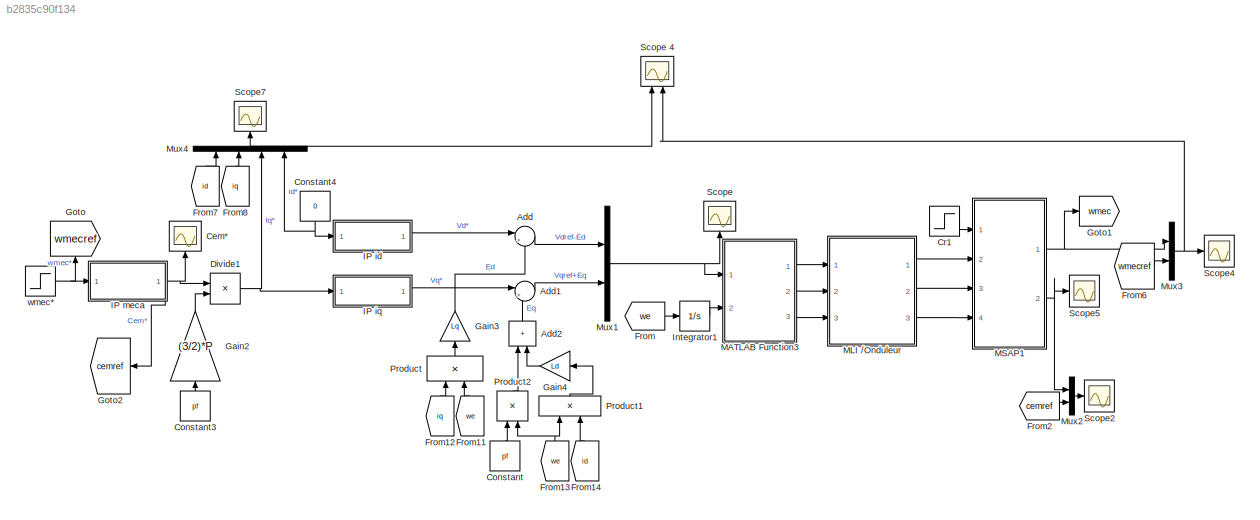
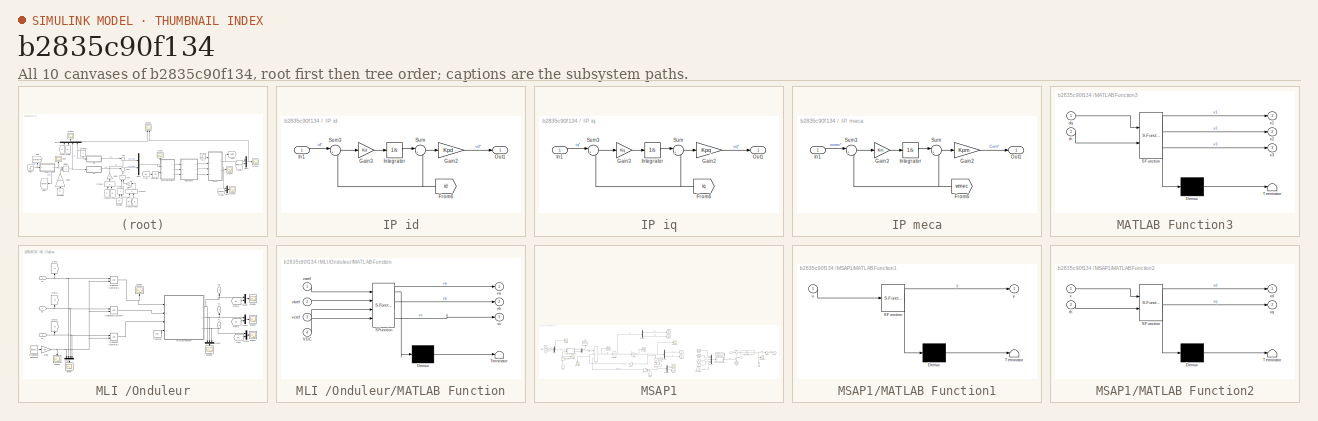
[diagram: thumbnail index - all 10 canvases of the model, root first then tree order]
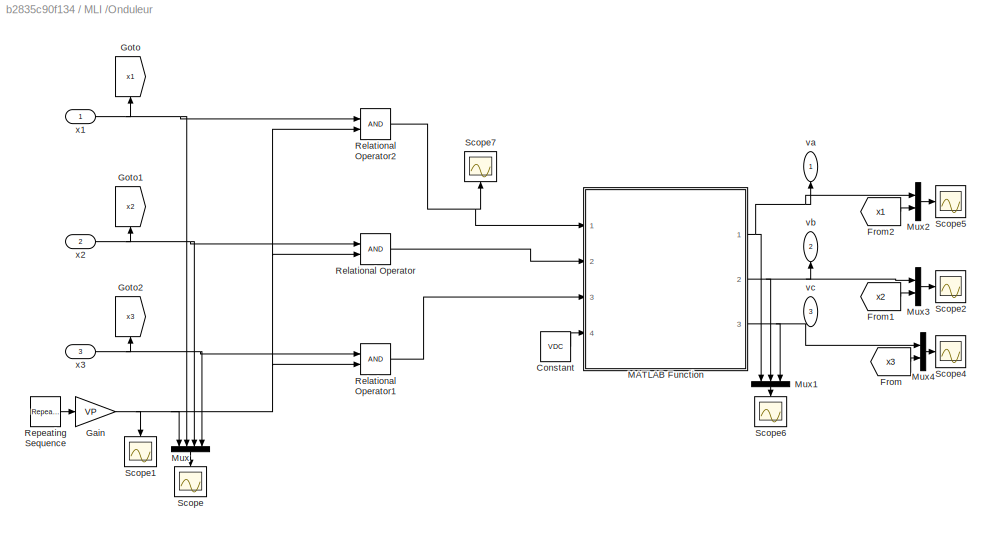
MODEL slx_b2835c90f134
KIND model
CONFIG AbsTol = 1e-5
CONFIG EnableMultiTasking = off
CONFIG FixedStep = 1e-5
CONFIG MaxStep = auto
CONFIG MinStep = auto
CONFIG RelTol = 1e-5
CONFIG SampleTimeConstraint = Unconstrained
CONFIG SolverName = ode1
CONFIG StartTime = 0.0
CONFIG StopTime = 10
BLOCK [Sum] Add
  Inputs = |+-
  Ports = [2, 1]
BLOCK [Sum] Add1
  Inputs = |++
  Ports = [2, 1]
BLOCK [Sum] Add2
  IconShape = rectangular
  NameLocation = right
  Ports = [2, 1]
BLOCK [Scope] Cem*
  Floating = off
  NameLocation = right
  NumInputPorts = 1
  Ports = [1]
  ScopeSpecificationString = Simulink.scopes.TimeScopeBlockCfg('CurrentConfiguration', extmgr.ConfigurationSet(extmgr.Configuration('Core','General UI',true),extmgr.Configuration('Core','Source UI',true),extmgr.Configuration('Sources','WiredSimulink',true,'DataLoggingVariableName','ScopeData3'),extmgr.Configuration('Visuals','Time Domain',true,'SerializedDisplays',{struct('MinYLimReal','-2390.72944','MaxYLimReal','17374.15214...<+1437ch>
BLOCK [Constant] Constant
  NameLocation = right
  Value = pf
BLOCK [Constant] Constant3
  NameLocation = right
  Value = pf
BLOCK [Constant] Constant4
  NameLocation = left
  Value = 0
BLOCK [Step] Cr1
  After = 1.9+C0
  SampleTime = 0
  Time = 6
BLOCK [Product] Divide1
  Inputs = */
  Ports = [2, 1]
BLOCK [From] From
  GotoTag = we
  TagVisibility = global
BLOCK [From] From11
  GotoTag = we
  NameLocation = right
  TagVisibility = global
BLOCK [From] From12
  GotoTag = iq
  NameLocation = right
  TagVisibility = global
BLOCK [From] From13
  GotoTag = we
  NameLocation = right
  TagVisibility = global
BLOCK [From] From14
  GotoTag = id
  NameLocation = right
  TagVisibility = global
BLOCK [From] From2
  GotoTag = cemref
BLOCK [From] From6
  GotoTag = wmecref
  TagVisibility = global
BLOCK [From] From7
  GotoTag = id
  NameLocation = right
  TagVisibility = global
BLOCK [From] From8
  GotoTag = iq
  NameLocation = right
  TagVisibility = global
BLOCK [Gain] Gain2
  Gain = (3/2)*P
  NameLocation = right
BLOCK [Gain] Gain3
  Gain = Lq
  NameLocation = right
BLOCK [Gain] Gain4
  Gain = Ld
  NameLocation = top
BLOCK [Goto] Goto
  GotoTag = wmecref
  NameLocation = right
  TagVisibility = global
BLOCK [Goto] Goto1
  GotoTag = wmec
  TagVisibility = global
BLOCK [Goto] Goto2
  GotoTag = cemref
  NameLocation = top
BLOCK [SubSystem] IP id
  Ports = [1, 1]
  RequestExecContextInheritance = off
BLOCK [From] IP id/From6
  GotoTag = id
  NameLocation = top
  TagVisibility = global
BLOCK [Gain] IP id/Gain2
  Gain = Kpd
BLOCK [Gain] IP id/Gain3
  Gain = Kid
BLOCK [Inport] IP id/In1
  IconDisplay = Signal name
BLOCK [Integrator] IP id/Integrator
  Ports = [1, 1]
BLOCK [Outport] IP id/Out1
  IconDisplay = Signal name
BLOCK [Sum] IP id/Sum
  Inputs = |+-
  Ports = [2, 1]
BLOCK [Sum] IP id/Sum3
  Inputs = |+-
  Ports = [2, 1]
BLOCK [SubSystem] IP iq
  Ports = [1, 1]
  RequestExecContextInheritance = off
BLOCK [From] IP iq/From6
  GotoTag = iq
  NameLocation = top
  TagVisibility = global
BLOCK [Gain] IP iq/Gain2
  Gain = Kpq
BLOCK [Gain] IP iq/Gain3
  Gain = Kiq
BLOCK [Inport] IP iq/In1
  IconDisplay = Signal name
BLOCK [Integrator] IP iq/Integrator
  Ports = [1, 1]
BLOCK [Outport] IP iq/Out1
  IconDisplay = Signal name
BLOCK [Sum] IP iq/Sum
  Inputs = |+-
  Ports = [2, 1]
BLOCK [Sum] IP iq/Sum3
  Inputs = |+-
  Ports = [2, 1]
BLOCK [SubSystem] IP meca
  Ports = [1, 1]
  RequestExecContextInheritance = off
BLOCK [From] IP meca/From6
  GotoTag = wmec
  NameLocation = top
  TagVisibility = global
BLOCK [Gain] IP meca/Gain2
  Gain = Kpm
BLOCK [Gain] IP meca/Gain3
  Gain = Kim
BLOCK [Inport] IP meca/In1
  IconDisplay = Signal name
BLOCK [Integrator] IP meca/Integrator
  Ports = [1, 1]
BLOCK [Outport] IP meca/Out1
  IconDisplay = Signal name
BLOCK [Sum] IP meca/Sum
  Inputs = |+-
  Ports = [2, 1]
BLOCK [Sum] IP meca/Sum3
  Inputs = |+-
  Ports = [2, 1]
BLOCK [Integrator] Integrator1
  Ports = [1, 1]
BLOCK [SubSystem] MATLAB Function3
  ErrorFcn = Stateflow.Translate.translate
  PermitHierarchicalResolution = ExplicitOnly
  Ports = [2, 3]
  RequestExecContextInheritance = off
  SFBlockType = MATLAB Function
  TreatAsAtomicUnit = on
BLOCK [Demux] MATLAB Function3/ Demux 
  Outputs = 1
  Ports = [1, 1]
BLOCK [S-Function] MATLAB Function3/ SFunction 
  EnableBusSupport = on
  FunctionName = sf_sfun
  PortCounts = [2 4]
  Ports = [2, 4]
  SFcnIsStateOwnerBlock = off
  SFunctionDeploymentMode = off
  Tag = Stateflow S-Function 3
BLOCK [Terminator] MATLAB Function3/ Terminator 
BLOCK [Inport] MATLAB Function3/dq
BLOCK [Inport] MATLAB Function3/th
  Port = 2
BLOCK [Outport] MATLAB Function3/x1
BLOCK [Outport] MATLAB Function3/x2
  Port = 2
BLOCK [Outport] MATLAB Function3/x3
  Port = 3
BLOCK [SubSystem] MLI //Onduleur
  Ports = [3, 3]
  RequestExecContextInheritance = off
BLOCK [Constant] MLI //Onduleur/Constant
  Value = VDC
BLOCK [From] MLI //Onduleur/From
  GotoTag = x3
BLOCK [From] MLI //Onduleur/From1
  GotoTag = x2
BLOCK [From] MLI //Onduleur/From2
  GotoTag = x1
BLOCK [Gain] MLI //Onduleur/Gain
  Gain = VP
BLOCK [Goto] MLI //Onduleur/Goto
  GotoTag = x1
  NameLocation = right
BLOCK [Goto] MLI //Onduleur/Goto1
  GotoTag = x2
  NameLocation = right
BLOCK [Goto] MLI //Onduleur/Goto2
  GotoTag = x3
  NameLocation = right
BLOCK [SubSystem] MLI //Onduleur/MATLAB Function
  ErrorFcn = Stateflow.Translate.translate
  PermitHierarchicalResolution = ExplicitOnly
  Ports = [4, 3]
  RequestExecContextInheritance = off
  SFBlockType = MATLAB Function
  TreatAsAtomicUnit = on
BLOCK [Demux] MLI //Onduleur/MATLAB Function/ Demux 
  Outputs = 1
  Ports = [1, 1]
BLOCK [S-Function] MLI //Onduleur/MATLAB Function/ SFunction 
  EnableBusSupport = on
  FunctionName = sf_sfun
  PortCounts = [4 4]
  Ports = [4, 4]
  SFcnIsStateOwnerBlock = off
  SFunctionDeploymentMode = off
  Tag = Stateflow S-Function 4
BLOCK [Terminator] MLI //Onduleur/MATLAB Function/ Terminator 
BLOCK [Inport] MLI //Onduleur/MATLAB Function/VDC
  Port = 4
BLOCK [Outport] MLI //Onduleur/MATLAB Function/va
BLOCK [Inport] MLI //Onduleur/MATLAB Function/varef
BLOCK [Outport] MLI //Onduleur/MATLAB Function/vb
  Port = 2
BLOCK [Inport] MLI //Onduleur/MATLAB Function/vbref
  Port = 2
BLOCK [Outport] MLI //Onduleur/MATLAB Function/vc
  Port = 3
BLOCK [Inport] MLI //Onduleur/MATLAB Function/vcref
  Port = 3
BLOCK [Mux] MLI //Onduleur/Mux
  DisplayOption = bar
  NameLocation = left
  Ports = [4, 1]
BLOCK [Mux] MLI //Onduleur/Mux1
  DisplayOption = bar
  Inputs = 3
  NameLocation = left
  Ports = [3, 1]
BLOCK [Mux] MLI //Onduleur/Mux2
  DisplayOption = bar
  Inputs = 2
  Ports = [2, 1]
BLOCK [Mux] MLI //Onduleur/Mux3
  DisplayOption = bar
  Inputs = 2
  Ports = [2, 1]
BLOCK [Mux] MLI //Onduleur/Mux4
  DisplayOption = bar
  Inputs = 2
  Ports = [2, 1]
BLOCK [RelationalOperator] MLI //Onduleur/Relational Operator
  InputSameDT = off
  OutDataTypeStr = boolean
  Ports = [2, 1]
  RndMeth = Simplest
BLOCK [RelationalOperator] MLI //Onduleur/Relational Operator1
  InputSameDT = off
  OutDataTypeStr = boolean
  Ports = [2, 1]
  RndMeth = Simplest
BLOCK [RelationalOperator] MLI //Onduleur/Relational Operator2
  InputSameDT = off
  OutDataTypeStr = boolean
  Ports = [2, 1]
  RndMeth = Simplest
BLOCK [Reference] MLI //Onduleur/Repeating Sequence  REF=simulink/Sources/Repeating
Sequence
  Ports = [0, 1]
  SourceBlock = simulink/Sources/Repeating\nSequence
  SourceProductBaseCode = SL
  SourceType = Repeating table
BLOCK [Scope] MLI //Onduleur/Scope
  Floating = off
  NameLocation = left
  NumInputPorts = 1
  Ports = [1]
  ScopeSpecificationString = Simulink.scopes.TimeScopeBlockCfg('CurrentConfiguration', extmgr.ConfigurationSet(extmgr.Configuration('Core','General UI',true),extmgr.Configuration('Core','Source UI',true),extmgr.Configuration('Sources','WiredSimulink',true),extmgr.Configuration('Visuals','Time Domain',true,'SerializedDisplays',{struct('MinYLimReal','-6232106.79899','MaxYLimReal','8915733.59676','YLabelReal','','MinYLimMag','  ...<+1857ch>
BLOCK [Scope] MLI //Onduleur/Scope1
  Floating = off
  NameLocation = left
  NumInputPorts = 1
  Ports = [1]
  ScopeSpecificationString = Simulink.scopes.TimeScopeBlockCfg('CurrentConfiguration', extmgr.ConfigurationSet(extmgr.Configuration('Core','General UI',true),extmgr.Configuration('Core','Source UI',true),extmgr.Configuration('Sources','WiredSimulink',true,'DataLoggingVariableName','ScopeData1'),extmgr.Configuration('Visuals','Time Domain',true,'SerializedDisplays',{struct('MinYLimReal','-0.01549','MaxYLimReal','1.125','YLabel...<+1719ch>
BLOCK [Scope] MLI //Onduleur/Scope2
  Floating = off
  NumInputPorts = 1
  Ports = [1]
  ScopeSpecificationString = Simulink.scopes.TimeScopeBlockCfg('CurrentConfiguration', extmgr.ConfigurationSet(extmgr.Configuration('Core','General UI',true),extmgr.Configuration('Core','Source UI',true),extmgr.Configuration('Sources','WiredSimulink',true,'DataLoggingVariableName','ScopeData1'),extmgr.Configuration('Visuals','Time Domain',true,'SerializedDisplays',{struct('MinYLimReal','-143159.1943','MaxYLimReal','88901.4589...<+1485ch>
BLOCK [Scope] MLI //Onduleur/Scope4
  Floating = off
  NumInputPorts = 1
  Ports = [1]
  ScopeSpecificationString = Simulink.scopes.TimeScopeBlockCfg('CurrentConfiguration', extmgr.ConfigurationSet(extmgr.Configuration('Core','General UI',true),extmgr.Configuration('Core','Source UI',true),extmgr.Configuration('Sources','WiredSimulink',true,'DataLoggingVariableName','ScopeData2'),extmgr.Configuration('Visuals','Time Domain',true,'SerializedDisplays',{struct('MinYLimReal','-295.28231','MaxYLimReal','247.86502','...<+1472ch>
BLOCK [Scope] MLI //Onduleur/Scope5
  Floating = off
  NumInputPorts = 1
  Ports = [1]
  ScopeSpecificationString = Simulink.scopes.TimeScopeBlockCfg('CurrentConfiguration', extmgr.ConfigurationSet(extmgr.Configuration('Core','General UI',true),extmgr.Configuration('Core','Source UI',true),extmgr.Configuration('Sources','WiredSimulink',true),extmgr.Configuration('Visuals','Time Domain',true,'SerializedDisplays',{struct('MinYLimReal','-2509.7717','MaxYLimReal','2503.53438','YLabelReal','','MinYLimMag','  0.00000...<+1744ch>
BLOCK [Scope] MLI //Onduleur/Scope6
  Floating = off
  NameLocation = left
  NumInputPorts = 1
  Ports = [1]
  ScopeSpecificationString = Simulink.scopes.TimeScopeBlockCfg('CurrentConfiguration', extmgr.ConfigurationSet(extmgr.Configuration('Core','General UI',true),extmgr.Configuration('Core','Source UI',true),extmgr.Configuration('Sources','WiredSimulink',true,'DataLoggingVariableName','ScopeData3'),extmgr.Configuration('Visuals','Time Domain',true,'SerializedDisplays',{struct('MinYLimReal','-472.35681','MaxYLimReal','453.96143','...<+1504ch>
BLOCK [Scope] MLI //Onduleur/Scope7
  Floating = off
  NameLocation = right
  NumInputPorts = 1
  Ports = [1]
  ScopeSpecificationString = Simulink.scopes.TimeScopeBlockCfg('CurrentConfiguration', extmgr.ConfigurationSet(extmgr.Configuration('Core','General UI',true),extmgr.Configuration('Core','Source UI',true),extmgr.Configuration('Sources','WiredSimulink',true,'DataLoggingVariableName','ScopeData2'),extmgr.Configuration('Visuals','Time Domain',true,'SerializedDisplays',{struct('MinYLimReal','-0.125','MaxYLimReal','1.125','YLabelRe...<+1467ch>
BLOCK [Outport] MLI //Onduleur/va
  IconDisplay = Signal name
  NameLocation = right
BLOCK [Outport] MLI //Onduleur/vb
  IconDisplay = Signal name
  NameLocation = right
  Port = 2
BLOCK [Outport] MLI //Onduleur/vc
  IconDisplay = Signal name
  NameLocation = right
  Port = 3
BLOCK [Inport] MLI //Onduleur/x1
  IconDisplay = Signal name
BLOCK [Inport] MLI //Onduleur/x2
  IconDisplay = Signal name
  Port = 2
BLOCK [Inport] MLI //Onduleur/x3
  IconDisplay = Signal name
  Port = 3
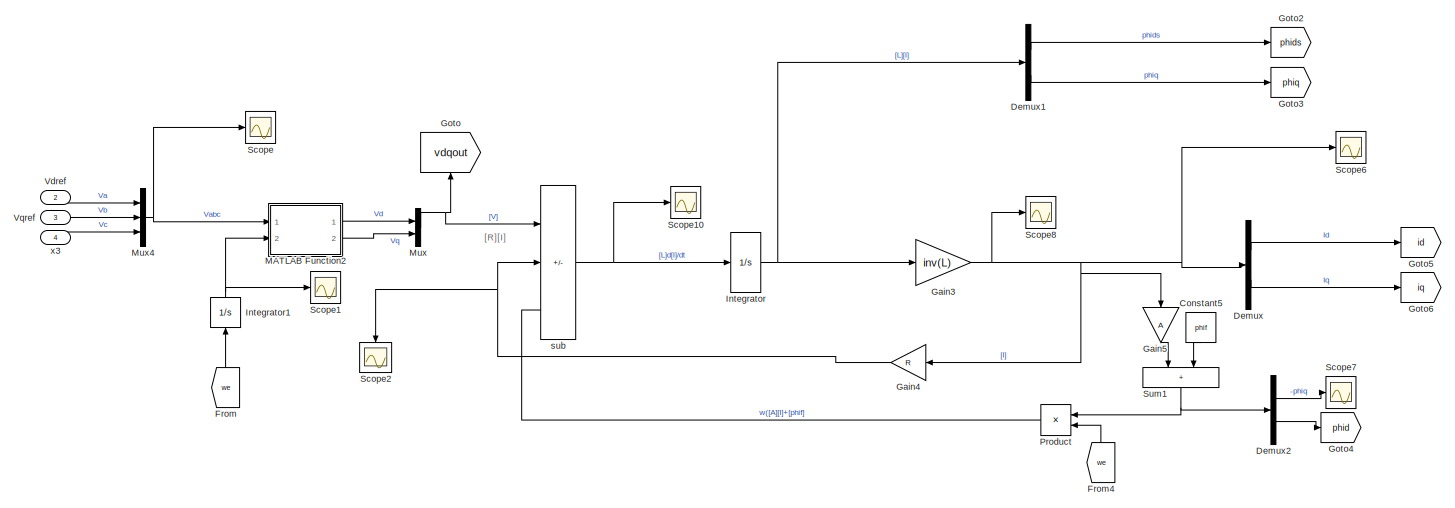
[diagram: MSAP1 - part 1/2, left side, full height]
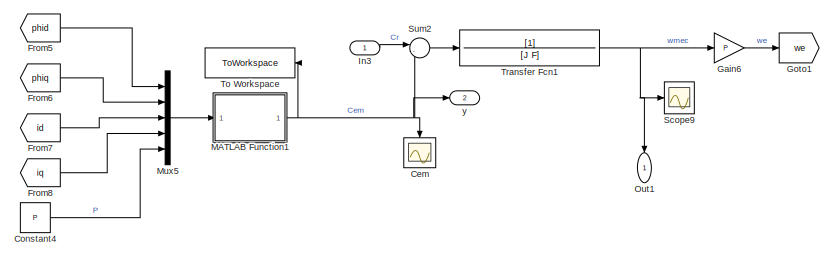
[diagram: MSAP1 - part 2/2, middle right region]
BLOCK [SubSystem] MSAP1
  Ports = [4, 2]
  RequestExecContextInheritance = off
BLOCK [Scope] MSAP1/Cem
  Floating = off
  NameLocation = left
  NumInputPorts = 1
  Ports = [1]
  ScopeSpecificationString = Simulink.scopes.TimeScopeBlockCfg('CurrentConfiguration', extmgr.ConfigurationSet(extmgr.Configuration('Core','General UI',true),extmgr.Configuration('Core','Source UI',true),extmgr.Configuration('Sources','WiredSimulink',true,'DataLoggingVariableName','ScopeData6'),extmgr.Configuration('Visuals','Time Domain',true,'SerializedDisplays',{struct('MinYLimReal','-15287997057405471362646147438087013557...<+1736ch>
BLOCK [Constant] MSAP1/Constant4
  Value = P
BLOCK [Constant] MSAP1/Constant5
  NameLocation = left
  Value = phif
BLOCK [Demux] MSAP1/Demux
  Outputs = 2
  Ports = [1, 2]
BLOCK [Demux] MSAP1/Demux1
  Outputs = 2
  Ports = [1, 2]
BLOCK [Demux] MSAP1/Demux2
  Outputs = 2
  Ports = [1, 2]
BLOCK [From] MSAP1/From
  GotoTag = we
  NameLocation = right
  TagVisibility = global
BLOCK [From] MSAP1/From4
  GotoTag = we
  NameLocation = right
  TagVisibility = global
BLOCK [From] MSAP1/From5
  GotoTag = phid
BLOCK [From] MSAP1/From6
  GotoTag = phiq
BLOCK [From] MSAP1/From7
  GotoTag = id
  TagVisibility = global
BLOCK [From] MSAP1/From8
  GotoTag = iq
  TagVisibility = global
BLOCK [Gain] MSAP1/Gain3
  Gain = inv(L)
  Multiplication = Matrix(K*u)
BLOCK [Gain] MSAP1/Gain4
  Gain = R
  Multiplication = Matrix(K*u)
  NameLocation = top
BLOCK [Gain] MSAP1/Gain5
  Gain = A
  Multiplication = Matrix(K*u)
  NameLocation = left
BLOCK [Gain] MSAP1/Gain6
  Gain = P
BLOCK [Goto] MSAP1/Goto
  GotoTag = vdqout
  NameLocation = right
  TagVisibility = global
BLOCK [Goto] MSAP1/Goto1
  GotoTag = we
  TagVisibility = global
BLOCK [Goto] MSAP1/Goto2
  GotoTag = phids
BLOCK [Goto] MSAP1/Goto3
  GotoTag = phiq
BLOCK [Goto] MSAP1/Goto4
  GotoTag = phid
BLOCK [Goto] MSAP1/Goto5
  GotoTag = id
  TagVisibility = global
BLOCK [Goto] MSAP1/Goto6
  GotoTag = iq
  TagVisibility = global
BLOCK [Inport] MSAP1/In3
  IconDisplay = Signal name
BLOCK [Integrator] MSAP1/Integrator
  Ports = [1, 1]
BLOCK [Integrator] MSAP1/Integrator1
  NameLocation = right
  Ports = [1, 1]
BLOCK [SubSystem] MSAP1/MATLAB Function1
  ErrorFcn = Stateflow.Translate.translate
  PermitHierarchicalResolution = ExplicitOnly
  Ports = [1, 1]
  RequestExecContextInheritance = off
  SFBlockType = MATLAB Function
  TreatAsAtomicUnit = on
BLOCK [Demux] MSAP1/MATLAB Function1/ Demux 
  Outputs = 1
  Ports = [1, 1]
BLOCK [S-Function] MSAP1/MATLAB Function1/ SFunction 
  EnableBusSupport = on
  FunctionName = sf_sfun
  PortCounts = [1 2]
  Ports = [1, 2]
  SFcnIsStateOwnerBlock = off
  SFunctionDeploymentMode = off
  Tag = Stateflow S-Function 7
BLOCK [Terminator] MSAP1/MATLAB Function1/ Terminator 
BLOCK [Inport] MSAP1/MATLAB Function1/u
BLOCK [Outport] MSAP1/MATLAB Function1/y
BLOCK [SubSystem] MSAP1/MATLAB Function2
  ErrorFcn = Stateflow.Translate.translate
  PermitHierarchicalResolution = ExplicitOnly
  Ports = [2, 2]
  RequestExecContextInheritance = off
  SFBlockType = MATLAB Function
  TreatAsAtomicUnit = on
BLOCK [Demux] MSAP1/MATLAB Function2/ Demux 
  Outputs = 1
  Ports = [1, 1]
BLOCK [S-Function] MSAP1/MATLAB Function2/ SFunction 
  EnableBusSupport = on
  FunctionName = sf_sfun
  PortCounts = [2 3]
  Ports = [2, 3]
  SFcnIsStateOwnerBlock = off
  SFunctionDeploymentMode = off
  Tag = Stateflow S-Function 12
BLOCK [Terminator] MSAP1/MATLAB Function2/ Terminator 
BLOCK [Inport] MSAP1/MATLAB Function2/th
  Port = 2
BLOCK [Inport] MSAP1/MATLAB Function2/x
BLOCK [Outport] MSAP1/MATLAB Function2/xd
BLOCK [Outport] MSAP1/MATLAB Function2/xq
  Port = 2
BLOCK [Mux] MSAP1/Mux
  DisplayOption = bar
  Inputs = 2
  Ports = [2, 1]
BLOCK [Mux] MSAP1/Mux4
  DisplayOption = bar
  Inputs = 3
  Ports = [3, 1]
BLOCK [Mux] MSAP1/Mux5
  DisplayOption = bar
  Inputs = 5
  Ports = [5, 1]
BLOCK [Outport] MSAP1/Out1
  IconDisplay = Signal name
  NameLocation = left
BLOCK [Product] MSAP1/Product
  NameLocation = top
  Ports = [2, 1]
BLOCK [Scope] MSAP1/Scope
  Floating = off
  NumInputPorts = 1
  Ports = [1]
  ScopeSpecificationString = Simulink.scopes.TimeScopeBlockCfg('CurrentConfiguration', extmgr.ConfigurationSet(extmgr.Configuration('Core','General UI',true),extmgr.Configuration('Core','Source UI',true),extmgr.Configuration('Sources','WiredSimulink',true,'DataLoggingVariableName','ScopeData6'),extmgr.Configuration('Visuals','Time Domain',true,'SerializedDisplays',{struct('MinYLimReal','-410.3531','MaxYLimReal','403.2247','YL...<+1464ch>
BLOCK [Scope] MSAP1/Scope1
  Floating = off
  NumInputPorts = 1
  Ports = [1]
  ScopeSpecificationString = Simulink.scopes.TimeScopeBlockCfg('CurrentConfiguration', extmgr.ConfigurationSet(extmgr.Configuration('Core','General UI',true),extmgr.Configuration('Core','Source UI',true),extmgr.Configuration('Sources','WiredSimulink',true,'DataLoggingVariableName','ScopeData5'),extmgr.Configuration('Visuals','Time Domain',true,'SerializedDisplays',{struct('MinYLimReal','-235.5','MaxYLimReal','2119.5','YLabelR...<+1711ch>
BLOCK [Scope] MSAP1/Scope10
  Floating = off
  NumInputPorts = 1
  Ports = [1]
  ScopeSpecificationString = Simulink.scopes.TimeScopeBlockCfg('CurrentConfiguration', extmgr.ConfigurationSet(extmgr.Configuration('Core','General UI',true),extmgr.Configuration('Core','Source UI',true),extmgr.Configuration('Sources','WiredSimulink',true,'DataLoggingVariableName','ScopeData7'),extmgr.Configuration('Visuals','Time Domain',true,'SerializedDisplays',{struct('MinYLimReal','-47185058807086313602723176658732344206...<+1940ch>
BLOCK [Scope] MSAP1/Scope2
  Floating = off
  NameLocation = left
  NumInputPorts = 1
  Ports = [1]
  ScopeSpecificationString = Simulink.scopes.TimeScopeBlockCfg('CurrentConfiguration', extmgr.ConfigurationSet(extmgr.Configuration('Core','General UI',true),extmgr.Configuration('Core','Source UI',true),extmgr.Configuration('Sources','WiredSimulink',true,'DataLoggingVariableName','ScopeData1'),extmgr.Configuration('Visuals','Time Domain',true,'SerializedDisplays',{struct('MinYLimReal','-3.58269','MaxYLimReal','6.95861','YLab...<+1782ch>
BLOCK [Scope] MSAP1/Scope6
  Floating = off
  NumInputPorts = 1
  Ports = [1]
  ScopeSpecificationString = Simulink.scopes.TimeScopeBlockCfg('CurrentConfiguration', extmgr.ConfigurationSet(extmgr.Configuration('Core','General UI',true),extmgr.Configuration('Core','Source UI',true),extmgr.Configuration('Sources','WiredSimulink',true,'DataLoggingVariableName','ScopeData9'),extmgr.Configuration('Visuals','Time Domain',true,'SerializedDisplays',{struct('MinYLimReal','-10822310628876025319186366905135936717...<+3616ch>
BLOCK [Scope] MSAP1/Scope7
  Floating = off
  NumInputPorts = 1
  Ports = [1]
  ScopeSpecificationString = Simulink.scopes.TimeScopeBlockCfg('CurrentConfiguration', extmgr.ConfigurationSet(extmgr.Configuration('Core','General UI',true),extmgr.Configuration('Core','Source UI',true),extmgr.Configuration('Sources','WiredSimulink',true,'DataLoggingVariableName','ScopeData10'),extmgr.Configuration('Visuals','Time Domain',true,'SerializedDisplays',{struct('MinYLimReal','-1413596756984263550154030862840932937...<+3223ch>
BLOCK [Scope] MSAP1/Scope8
  Floating = off
  NumInputPorts = 1
  Ports = [1]
  ScopeSpecificationString = Simulink.scopes.TimeScopeBlockCfg('CurrentConfiguration', extmgr.ConfigurationSet(extmgr.Configuration('Core','General UI',true),extmgr.Configuration('Core','Source UI',true),extmgr.Configuration('Sources','WiredSimulink',true,'DataLoggingVariableName','ScopeData11'),extmgr.Configuration('Visuals','Time Domain',true,'SerializedDisplays',{struct('MinYLimReal','-1485346282409737000852894810103375624...<+3616ch>
BLOCK [Scope] MSAP1/Scope9
  Floating = off
  NumInputPorts = 1
  Ports = [1]
  ScopeSpecificationString = Simulink.scopes.TimeScopeBlockCfg('CurrentConfiguration', extmgr.ConfigurationSet(extmgr.Configuration('Core','General UI',true),extmgr.Configuration('Core','Source UI',true),extmgr.Configuration('Sources','WiredSimulink',true),extmgr.Configuration('Visuals','Time Domain',true,'SerializedDisplays',{struct('MinYLimReal','-330.39444','MaxYLimReal','245.90603','YLabelReal','','MinYLimMag',' 0.00000',...<+1367ch>
BLOCK [Sum] MSAP1/Sum1
  IconShape = rectangular
  NameLocation = left
  Ports = [2, 1]
BLOCK [Sum] MSAP1/Sum2
  Inputs = |-+
  Ports = [2, 1]
BLOCK [ToWorkspace] MSAP1/To Workspace
  FixptAsFi = on
  MaxDataPoints = inf
  NameLocation = top
  Ports = [1]
  SampleTime = -1
  SaveFormat = Timeseries
  VariableName = Torque
BLOCK [TransferFcn] MSAP1/Transfer Fcn1
  Denominator = [J F]
BLOCK [Inport] MSAP1/Vdref
  IconDisplay = Signal name
  Port = 2
BLOCK [Inport] MSAP1/Vqref
  IconDisplay = Signal name
  Port = 3
BLOCK [Sum] MSAP1/sub
  IconShape = rectangular
  Inputs = +--
  Ports = [3, 1]
BLOCK [Inport] MSAP1/x3
  IconDisplay = Signal name
  Port = 4
BLOCK [Outport] MSAP1/y
  IconDisplay = Signal name
  Port = 2
BLOCK [Mux] Mux1
  DisplayOption = bar
  Inputs = 2
  Ports = [2, 1]
BLOCK [Mux] Mux2
  DisplayOption = bar
  Inputs = 2
  Ports = [2, 1]
BLOCK [Mux] Mux3
  DisplayOption = bar
  Inputs = 2
  Ports = [2, 1]
BLOCK [Mux] Mux4
  DisplayOption = bar
  NameLocation = right
  Ports = [4, 1]
BLOCK [Product] Product
  NameLocation = right
  Ports = [2, 1]
BLOCK [Product] Product1
  NameLocation = right
  Ports = [2, 1]
BLOCK [Product] Product2
  NameLocation = right
  Ports = [2, 1]
BLOCK [Scope] Scope
  Floating = off
  NameLocation = right
  NumInputPorts = 1
  Ports = [1]
  ScopeSpecificationString = Simulink.scopes.TimeScopeBlockCfg('CurrentConfiguration', extmgr.ConfigurationSet(extmgr.Configuration('Core','General UI',true),extmgr.Configuration('Core','Source UI',true),extmgr.Configuration('Sources','WiredSimulink',true,'DataLoggingVariableName','ScopeData1'),extmgr.Configuration('Visuals','Time Domain',true,'SerializedDisplays',{struct('MinYLimReal','-989.25618','MaxYLimReal','1039.81168',...<+1802ch>
BLOCK [Scope] Scope 4
  Floating = off
  NameLocation = right
  NumInputPorts = 2
  Ports = [2]
  ScopeSpecificationString = Simulink.scopes.TimeScopeBlockCfg('CurrentConfiguration', extmgr.ConfigurationSet(extmgr.Configuration('Core','General UI',true),extmgr.Configuration('Core','Source UI',true),extmgr.Configuration('Sources','WiredSimulink',true,'DataLoggingVariableName','ScopeData1'),extmgr.Configuration('Visuals','Time Domain',true,'SerializedDisplays',{struct('MinYLimReal','-4.96613','MaxYLimReal','10.47615','YLa...<+2387ch>
BLOCK [Scope] Scope2
  Floating = off
  NumInputPorts = 1
  Ports = [1]
  ScopeSpecificationString = Simulink.scopes.TimeScopeBlockCfg('CurrentConfiguration', extmgr.ConfigurationSet(extmgr.Configuration('Core','General UI',true),extmgr.Configuration('Core','Source UI',true),extmgr.Configuration('Sources','WiredSimulink',true,'DataLoggingVariableName','ScopeData2'),extmgr.Configuration('Visuals','Time Domain',true,'SerializedDisplays',{struct('MinYLimReal','-1.09258','MaxYLimReal','8.80032','YLab...<+1449ch>
BLOCK [Scope] Scope4
  Floating = off
  NumInputPorts = 1
  Ports = [1]
  ScopeSpecificationString = Simulink.scopes.TimeScopeBlockCfg('CurrentConfiguration', extmgr.ConfigurationSet(extmgr.Configuration('Core','General UI',true),extmgr.Configuration('Core','Source UI',true),extmgr.Configuration('Sources','WiredSimulink',true,'DataLoggingVariableName','ScopeData1'),extmgr.Configuration('Visuals','Time Domain',true,'SerializedDisplays',{struct('MinYLimReal','-39.25','MaxYLimReal','353.25','YLabelR...<+1824ch>
BLOCK [Scope] Scope5
  Floating = off
  NumInputPorts = 1
  Ports = [1]
  ScopeSpecificationString = Simulink.scopes.TimeScopeBlockCfg('CurrentConfiguration', extmgr.ConfigurationSet(extmgr.Configuration('Core','General UI',true),extmgr.Configuration('Core','Source UI',true),extmgr.Configuration('Sources','WiredSimulink',true,'DataLoggingVariableName','ScopeData2'),extmgr.Configuration('Visuals','Time Domain',true,'SerializedDisplays',{struct('MinYLimReal','-99.4266','MaxYLimReal','342.77268','YL...<+1733ch>
BLOCK [Scope] Scope7
  Floating = off
  NameLocation = right
  NumInputPorts = 1
  Ports = [1]
  ScopeSpecificationString = Simulink.scopes.TimeScopeBlockCfg('CurrentConfiguration', extmgr.ConfigurationSet(extmgr.Configuration('Core','General UI',true),extmgr.Configuration('Core','Source UI',true),extmgr.Configuration('Sources','WiredSimulink',true,'DataLoggingVariableName','ScopeData4'),extmgr.Configuration('Visuals','Time Domain',true,'SerializedDisplays',{struct('MinYLimReal','-0.97844','MaxYLimReal','2.87619','YLab...<+1763ch>
BLOCK [Step] wmec*
  After = 157
  SampleTime = 0
  Time = 4
ANNOTATION MSAP1: [R][I]
LINE Add1:1 -> Mux1:2
LINE Add2:1 -> Add1:2
LINE Add:1 -> Mux1:1
LINE Constant3:1 -> Gain2:1
NET Constant4:1 -> IP id:1, Mux4:4
LINE Constant:1 -> Product2:1
LINE Cr1:1 -> MSAP1:1
NET Divide1:1 -> IP iq:1, Mux4:3
LINE From11:1 -> Product:2
LINE From12:1 -> Product:1
NET From13:1 -> Product1:1, Product2:2
LINE From14:1 -> Product1:2
LINE From2:1 -> Mux2:2
LINE From6:1 -> Mux3:2
LINE From7:1 -> Mux4:1
LINE From8:1 -> Mux4:2
LINE From:1 -> Integrator1:1
LINE Gain2:1 -> Divide1:2
LINE Gain3:1 -> Add:2
LINE Gain4:1 -> Add2:2
NET IP id/From6:1 -> IP id/Sum3:2, IP id/Sum:2
LINE IP id/Gain2:1 -> IP id/Out1:1
LINE IP id/Gain3:1 -> IP id/Integrator:1
LINE IP id/In1:1 -> IP id/Sum3:1
LINE IP id/Integrator:1 -> IP id/Sum:1
LINE IP id/Sum3:1 -> IP id/Gain3:1
LINE IP id/Sum:1 -> IP id/Gain2:1
LINE IP id:1 -> Add:1
NET IP iq/From6:1 -> IP iq/Sum3:2, IP iq/Sum:2
LINE IP iq/Gain2:1 -> IP iq/Out1:1
LINE IP iq/Gain3:1 -> IP iq/Integrator:1
LINE IP iq/In1:1 -> IP iq/Sum3:1
LINE IP iq/Integrator:1 -> IP iq/Sum:1
LINE IP iq/Sum3:1 -> IP iq/Gain3:1
LINE IP iq/Sum:1 -> IP iq/Gain2:1
LINE IP iq:1 -> Add1:1
NET IP meca/From6:1 -> IP meca/Sum3:2, IP meca/Sum:2
LINE IP meca/Gain2:1 -> IP meca/Out1:1
LINE IP meca/Gain3:1 -> IP meca/Integrator:1
LINE IP meca/In1:1 -> IP meca/Sum3:1
LINE IP meca/Integrator:1 -> IP meca/Sum:1
LINE IP meca/Sum3:1 -> IP meca/Gain3:1
LINE IP meca/Sum:1 -> IP meca/Gain2:1
NET IP meca:1 -> Cem*:1, Divide1:1, Goto2:1
LINE Integrator1:1 -> MATLAB Function3:2
LINE MATLAB Function3:1 -> MLI //Onduleur:1
LINE MATLAB Function3:2 -> MLI //Onduleur:2
LINE MATLAB Function3:3 -> MLI //Onduleur:3
LINE MLI //Onduleur/Constant:1 -> MLI //Onduleur/MATLAB Function:4
LINE MLI //Onduleur/From1:1 -> MLI //Onduleur/Mux3:2
LINE MLI //Onduleur/From2:1 -> MLI //Onduleur/Mux2:2
LINE MLI //Onduleur/From:1 -> MLI //Onduleur/Mux4:2
NET MLI //Onduleur/Gain:1 -> MLI //Onduleur/Mux:1, MLI //Onduleur/Relational Operator1:2, MLI //Onduleur/Relational Operator2:2, MLI //Onduleur/Relational Operator:2, MLI //Onduleur/Scope1:1
NET MLI //Onduleur/MATLAB Function:1 -> MLI //Onduleur/Mux1:1, MLI //Onduleur/Mux2:1, MLI //Onduleur/va:1
NET MLI //Onduleur/MATLAB Function:2 -> MLI //Onduleur/Mux1:2, MLI //Onduleur/Mux3:1, MLI //Onduleur/vb:1
NET MLI //Onduleur/MATLAB Function:3 -> MLI //Onduleur/Mux1:3, MLI //Onduleur/Mux4:1, MLI //Onduleur/vc:1
LINE MLI //Onduleur/Mux1:1 -> MLI //Onduleur/Scope6:1
LINE MLI //Onduleur/Mux2:1 -> MLI //Onduleur/Scope5:1
LINE MLI //Onduleur/Mux3:1 -> MLI //Onduleur/Scope2:1
LINE MLI //Onduleur/Mux4:1 -> MLI //Onduleur/Scope4:1
LINE MLI //Onduleur/Mux:1 -> MLI //Onduleur/Scope:1
LINE MLI //Onduleur/Relational Operator1:1 -> MLI //Onduleur/MATLAB Function:3
NET MLI //Onduleur/Relational Operator2:1 -> MLI //Onduleur/MATLAB Function:1, MLI //Onduleur/Scope7:1
LINE MLI //Onduleur/Relational Operator:1 -> MLI //Onduleur/MATLAB Function:2
LINE MLI //Onduleur/Repeating Sequence:1 -> MLI //Onduleur/Gain:1
NET MLI //Onduleur/x1:1 -> MLI //Onduleur/Goto:1, MLI //Onduleur/Mux:2, MLI //Onduleur/Relational Operator2:1
NET MLI //Onduleur/x2:1 -> MLI //Onduleur/Goto1:1, MLI //Onduleur/Mux:3, MLI //Onduleur/Relational Operator:1
NET MLI //Onduleur/x3:1 -> MLI //Onduleur/Goto2:1, MLI //Onduleur/Mux:4, MLI //Onduleur/Relational Operator1:1
LINE MLI //Onduleur:1 -> MSAP1:2
LINE MLI //Onduleur:2 -> MSAP1:3
LINE MLI //Onduleur:3 -> MSAP1:4
LINE MSAP1/Constant4:1 -> MSAP1/Mux5:5
LINE MSAP1/Constant5:1 -> MSAP1/Sum1:2
LINE MSAP1/Demux1:1 -> MSAP1/Goto2:1
LINE MSAP1/Demux1:2 -> MSAP1/Goto3:1
LINE MSAP1/Demux2:1 -> MSAP1/Scope7:1
LINE MSAP1/Demux2:2 -> MSAP1/Goto4:1
LINE MSAP1/Demux:1 -> MSAP1/Goto5:1
LINE MSAP1/Demux:2 -> MSAP1/Goto6:1
LINE MSAP1/From4:1 -> MSAP1/Product:2
LINE MSAP1/From5:1 -> MSAP1/Mux5:1
LINE MSAP1/From6:1 -> MSAP1/Mux5:2
LINE MSAP1/From7:1 -> MSAP1/Mux5:3
LINE MSAP1/From8:1 -> MSAP1/Mux5:4
LINE MSAP1/From:1 -> MSAP1/Integrator1:1
NET MSAP1/Gain3:1 -> MSAP1/Demux:1, MSAP1/Gain4:1, MSAP1/Gain5:1, MSAP1/Scope6:1, MSAP1/Scope8:1
NET MSAP1/Gain4:1 -> MSAP1/Scope2:1, MSAP1/sub:2
LINE MSAP1/Gain5:1 -> MSAP1/Sum1:1
LINE MSAP1/Gain6:1 -> MSAP1/Goto1:1
LINE MSAP1/In3:1 -> MSAP1/Sum2:1
NET MSAP1/Integrator1:1 -> MSAP1/MATLAB Function2:2, MSAP1/Scope1:1
NET MSAP1/Integrator:1 -> MSAP1/Demux1:1, MSAP1/Gain3:1
NET MSAP1/MATLAB Function1:1 -> MSAP1/Cem:1, MSAP1/Sum2:2, MSAP1/To Workspace:1, MSAP1/y:1
LINE MSAP1/MATLAB Function2:1 -> MSAP1/Mux:1
LINE MSAP1/MATLAB Function2:2 -> MSAP1/Mux:2
NET MSAP1/Mux4:1 -> MSAP1/MATLAB Function2:1, MSAP1/Scope:1
LINE MSAP1/Mux5:1 -> MSAP1/MATLAB Function1:1
NET MSAP1/Mux:1 -> MSAP1/Goto:1, MSAP1/sub:1
LINE MSAP1/Product:1 -> MSAP1/sub:3
NET MSAP1/Sum1:1 -> MSAP1/Demux2:1, MSAP1/Product:1
LINE MSAP1/Sum2:1 -> MSAP1/Transfer Fcn1:1
NET MSAP1/Transfer Fcn1:1 -> MSAP1/Gain6:1, MSAP1/Out1:1, MSAP1/Scope9:1
LINE MSAP1/Vdref:1 -> MSAP1/Mux4:1
LINE MSAP1/Vqref:1 -> MSAP1/Mux4:2
NET MSAP1/sub:1 -> MSAP1/Integrator:1, MSAP1/Scope10:1
LINE MSAP1/x3:1 -> MSAP1/Mux4:3
NET MSAP1:1 -> Goto1:1, Mux3:1
NET MSAP1:2 -> Mux2:1, Scope5:1
NET Mux1:1 -> MATLAB Function3:1, Scope:1
LINE Mux2:1 -> Scope2:1
NET Mux3:1 -> Scope 4:2, Scope4:1
NET Mux4:1 -> Scope 4:1, Scope7:1
LINE Product1:1 -> Gain4:1
LINE Product2:1 -> Add2:1
LINE Product:1 -> Gain3:1
NET wmec*:1 -> Goto:1, IP meca:1
note: NET lines group one-source signal fan-out (src -> all destinations, sorted); 1:1 wires keep LINE
CHART MATLAB Function3 states=1 transitions=1
  STATE_LABEL 'eML_blk_kernel()'
  STATE_LABEL 'SCRIPT:\nfunction [x1,x2,x3]= Parkinv(dq,th)\nparkinv = [ cos(th),           -sin(th); \n          cos(th-2*pi/3), -sin(th-2*pi/3); \n          cos(th+2*pi/3), -sin(th+2*pi/3)];\ntemp = parkinv * [dq];\nx1=temp(1);\nx2=temp(2);\nx3=temp(3);'
CHART MLI //Onduleur/MATLAB Function states=1 transitions=1
  STATE_LABEL 'eML_blk_kernel()'
  STATE_LABEL 'SCRIPT:\nfunction [va,vb,vc]= OnduleurOut(varef,vbref,vcref,VDC)\nvaref=double(varef);\nvbref=double(vbref);\nvcref=double(vcref);\nva=(2*varef-vbref-vcref)*(VDC/3);\nvb=(2*vbref-varef-vcref)*(VDC/3);\nvc=(2*vcref-vbref-varef)*(VDC/3);\n'
CHART MSAP1/MATLAB Function1 states=1 transitions=1
  STATE_LABEL 'eML_blk_kernel()'
  STATE_LABEL 'SCRIPT:\nfunction y = CEM(u)\n\ny =(3/2)*u(5)*(u(1)*u(4)-u(2)*u(3));\n'
CHART MSAP1/MATLAB Function2 states=1 transitions=1
  STATE_LABEL 'eML_blk_kernel()'
  STATE_LABEL 'SCRIPT:\nfunction [xd,xq] = Park(x,th)\n% vd=(2/3)*(u1*cos(th)+u2*cos(th-2*pi/3)+u3*cos(th+2*pi/3));\n% vq=(2/3)*(-u1*sin(th)-u2*sin(th-2*pi/3)-u3*sin(th+2*pi/3));\nP=(2/3)*[ cos(th) cos(th-2*pi/3) cos(th+2*pi/3);\n         -sin(th) -sin(th-2*pi/3) -sin(th+2*pi/3)  ];\nprod=P*x;\nxd=prod(1);\nxq=prod(2);'
CHART  states=0 transitions=0
CHART  states=0 transitions=0
CHART  states=0 transitions=0
CHART  states=0 transitions=0
